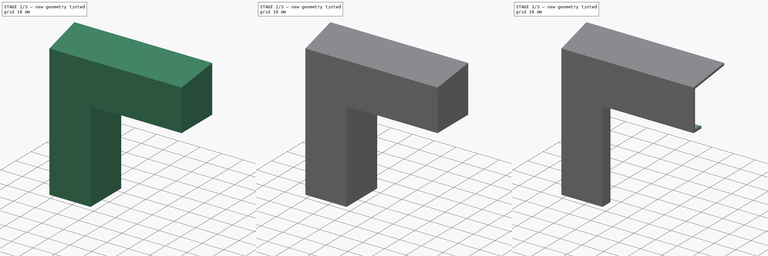
[diagram: build sequence overview — one tinted view per stage of 3, left to right]
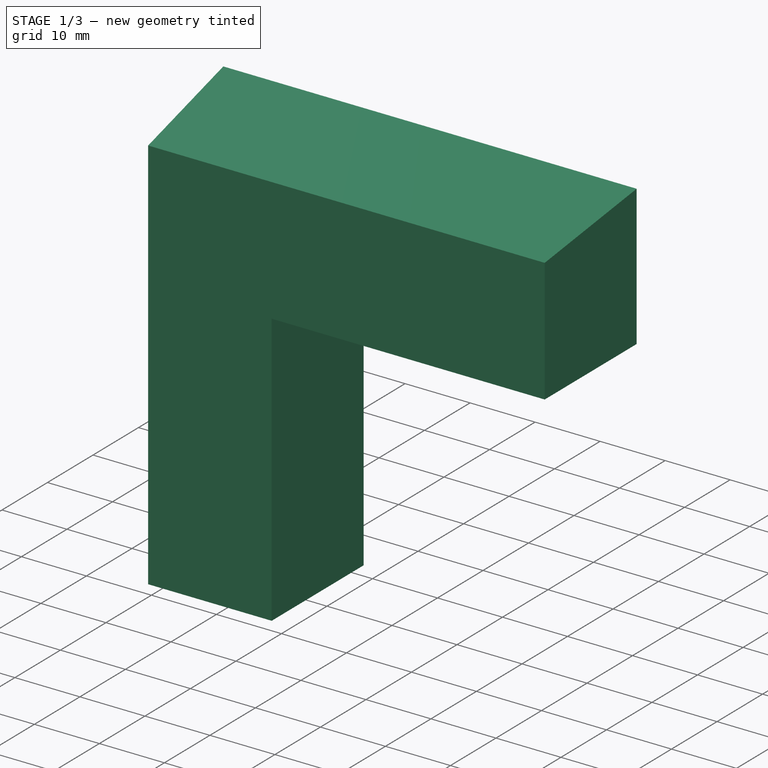
[diagram: stage 1 of 3 — iso view after this stage's code; geometry added in this stage tinted green]
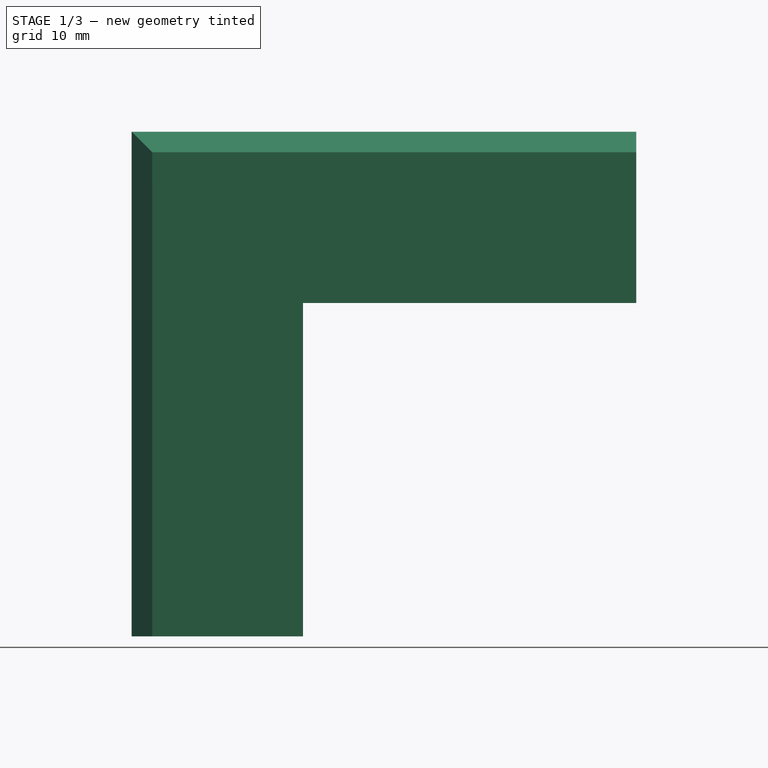
[diagram: stage 1 of 3 — front view after this stage's code; geometry added in this stage tinted green]
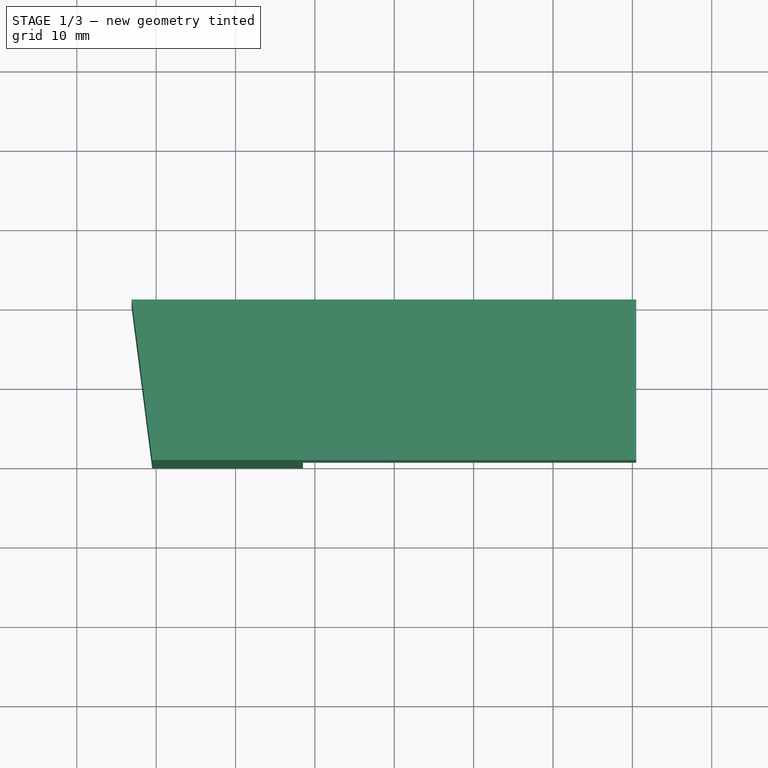
[diagram: stage 1 of 3 — top view after this stage's code; geometry added in this stage tinted green]
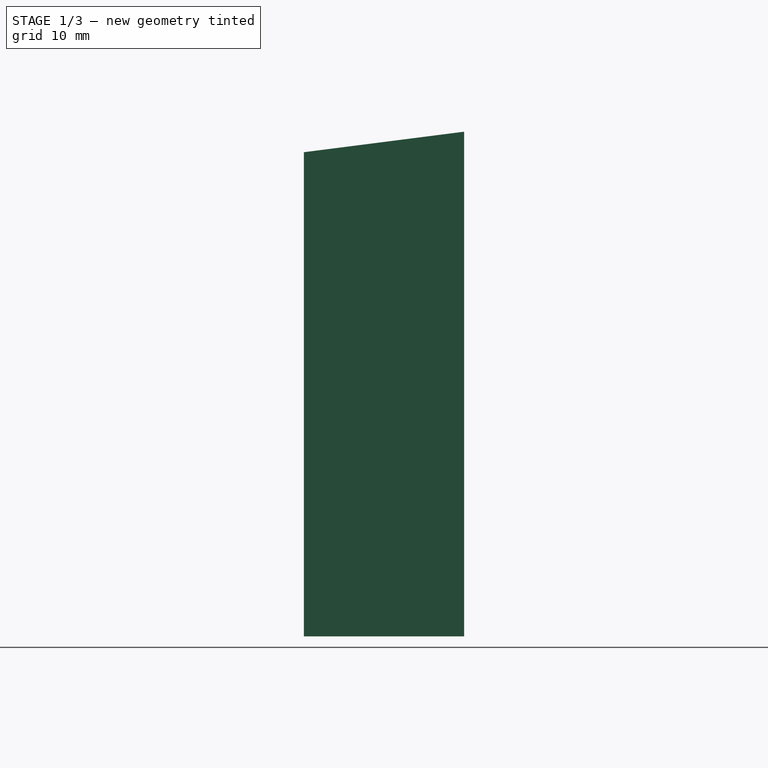
[diagram: stage 1 of 3 — right view after this stage's code; geometry added in this stage tinted green]
FCSTD DOCUMENT  (FreeCAD 0.20R29177 +426 (Git))
Label: monitor_cover_plates
License: All rights reserved
LicenseURL: http://en.wikipedia.org/wiki/All_rights_reserved
objects: Sketcher::SketchObject×4, PartDesign::Pocket×4, Spreadsheet::Sheet×1, PartDesign::Pad×1, PartDesign::Thickness×1, PartDesign::Body×1
note: 17 computed .brp shape members not serialized (recipe doc carries the construction recipe); baked Part::Feature solids carry a one-line shape summary decoded from their .brp

FEATURE [Spreadsheet::Sheet] Spreadsheet  label="$params"
  cells = A1=name; B1=value; A2=tol; B2(tol)=0.1; A3=thickness; B3(thickness)=1; A4=angle; B4(angle)=7.3; A5=width; B5(width)=60; A6=height; B6(height)=60; A7=screen_depth; B7(screen_depth)=19.2; A8=screen_lcd_offset; B8(screen_lcd_offset)=4.2; A9=screen_frame_thickness; B9(screen_frame_thickness)=17
FEATURE [Sketcher::SketchObject] Sketch  label="Corner Base Body Pad Sketch"
  FullyConstrained = true
  MapMode = 5
  Placement = pos=(0,0,0) rot=(1,0,0;1.5708rad)
  Support = -> [XZ_Plane]
  expr: Constraints[10] = <<$params>>.height + <<$params>>.thickness
  expr: Constraints[11] = <<$params>>.width + <<$params>>.thickness
  expr: Constraints[12] = Spreadsheet.screen_frame_thickness + <<$params>>.thickness * 2
  expr: Constraints[13] = Spreadsheet.screen_frame_thickness + <<$params>>.thickness * 2
  sketch-geometry (6):
    g0: LineSegment StartX=-30.5 StartY=-30.5 StartZ=0 EndX=-30.5 EndY=30.5 EndZ=0
    g1: LineSegment StartX=-30.5 StartY=30.5 StartZ=0 EndX=30.5 EndY=30.5 EndZ=0
    g2: LineSegment StartX=30.5 StartY=30.5 StartZ=0 EndX=30.5 EndY=11.5 EndZ=0
    g3: LineSegment StartX=30.5 StartY=11.5 StartZ=0 EndX=-11.5 EndY=11.5 EndZ=0
    g4: LineSegment StartX=-11.5 StartY=11.5 StartZ=0 EndX=-11.5 EndY=-30.5 EndZ=0
    g5: LineSegment StartX=-11.5 StartY=-30.5 StartZ=0 EndX=-30.5 EndY=-30.5 EndZ=0
  constraints (16):
    c: Coincident(g0,g1)
    c: Coincident(g1,g2)
    c: Vertical(g2)
    c: Coincident(g2,g3)
    c: Horizontal(g3)
    c: Coincident(g3,g4)
    c: Vertical(g4)
    c: Coincident(g4,g5)
    c: Coincident(g5,g0)
    c: Horizontal(g5)
    c: DistanceY(g0,g0) = 61
    c: DistanceX(g1,g1) = 61
    c: DistanceX(g5,g5) = 19
    c: DistanceY(g2,g2) = 19
    c: Symmetric(g0,g1,g-2)
    c: Symmetric(g0,g0,g-1)
FEATURE [PartDesign::Pad] Pad  label="Corner Base Body Pad"
  Direction = (0,-1,-2e-16)
  Length = 20.2
  Length2 = 10
  Placement = pos=(0,0,0) rot=(1,0,0;1.5708rad)
  Profile = -> Sketch
  ReferenceAxis = -> Sketch [N_Axis]
  Reversed = true
  TaperAngle = 7.3
  Type = 0
  expr: Length = <<$params>>.screen_depth + <<$params>>.thickness
  expr: TaperAngle = <<$params>>.angle
FEATURE [Sketcher::SketchObject] Sketch001  label="Corner Base Level Cut Sketch"
  ExternalGeometry = -> [Sketch]
  FullyConstrained = true
  MapMode = 5
  Placement = pos=(0,0,0) rot=(1,0,0;1.5708rad)
  Support = -> [Pad]
  sketch-geometry (10):
    g0: LineSegment StartX=-30.5 StartY=-30.5 StartZ=0 EndX=-11.5 EndY=-30.5 EndZ=0
    g1: LineSegment StartX=-11.5 StartY=-30.5 StartZ=0 EndX=-11.5 EndY=11.5 EndZ=0
    g2: LineSegment StartX=30.5 StartY=11.5 StartZ=0 EndX=-11.5 EndY=11.5 EndZ=0
    g3: LineSegment StartX=30.5 StartY=30.5 StartZ=0 EndX=30.5 EndY=11.5 EndZ=0
    g4: LineSegment StartX=-40.5 StartY=-40.5 StartZ=0 EndX=40.5 EndY=-40.5 EndZ=0
    g5: LineSegment StartX=40.5 StartY=40.5 StartZ=0 EndX=40.5 EndY=-40.5 EndZ=0
    g6: LineSegment StartX=-30.5 StartY=-30.5 StartZ=0 EndX=-40.5 EndY=-30.5 EndZ=0
    g7: LineSegment StartX=-40.5 StartY=-30.5 StartZ=0 EndX=-40.5 EndY=-40.5 EndZ=0
    g8: LineSegment StartX=30.5 StartY=30.5 StartZ=0 EndX=30.5 EndY=40.5 EndZ=0
    g9: LineSegment StartX=30.5 StartY=40.5 StartZ=0 EndX=40.5 EndY=40.5 EndZ=0
  constraints (25):
    c: Coincident(g0,g-3)
    c: Coincident(g0,g-4)
    c: Coincident(g1,g0)
    c: Coincident(g1,g-5)
    c: Coincident(g2,g-6)
    c: Coincident(g2,g1)
    c: Coincident(g3,g-6)
    c: Coincident(g3,g2)
    c: Horizontal(g4)
    c: Coincident(g5,g4)
    c: Vertical(g5)
    c: Coincident(g6,g0)
    c: Horizontal(g6)
    c: Coincident(g7,g6)
    c: Coincident(g7,g4)
    c: Vertical(g7)
    c: Coincident(g8,g3)
    c: Vertical(g8)
    c: Coincident(g9,g8)
    c: Coincident(g9,g5)
    c: Horizontal(g9)
    c: Equal(g9,g8)
    c: Equal(g8,g6)
    c: Equal(g6,g7)
    c: DistanceY(g7,g7) = 10
FEATURE [PartDesign::Pocket] Pocket  label="Corner Base Level Cut"
  BaseFeature = -> Pad
  Direction = (0,1,2e-16)
  Length = 20.2
  Length2 = 5
  Offset = 19.2
  Placement = pos=(0,0,0) rot=(1,0,0;1.5708rad)
  Profile = -> Sketch001
  ReferenceAxis = -> Sketch001 [N_Axis]
  Refine = true
  Type = 0
  expr: Length = <<$params>>.screen_depth + <<$params>>.thickness
  expr: Offset = <<$params>>.screen_depth
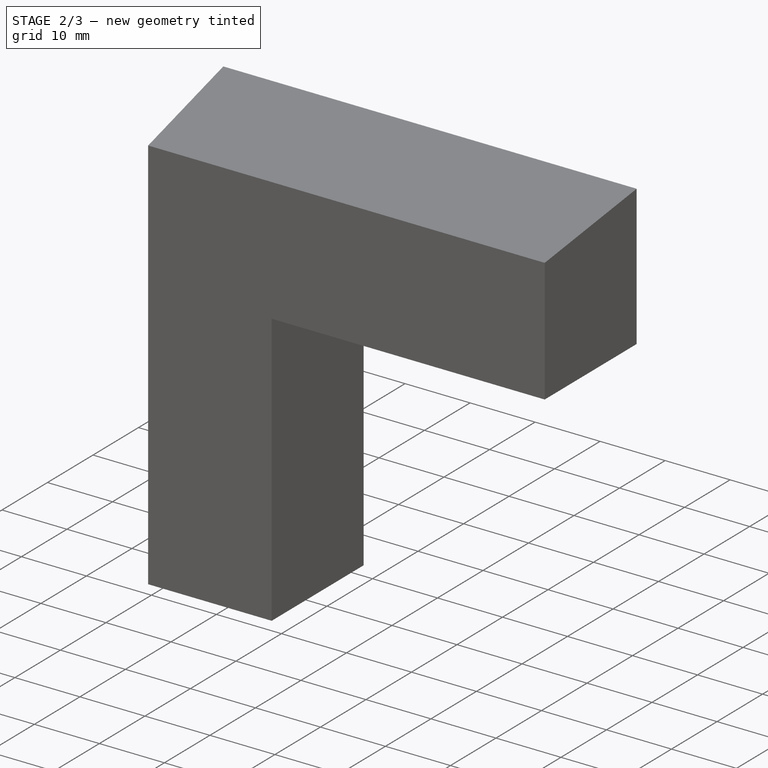
[diagram: stage 2 of 3 — iso view after this stage's code; geometry added in this stage tinted green]
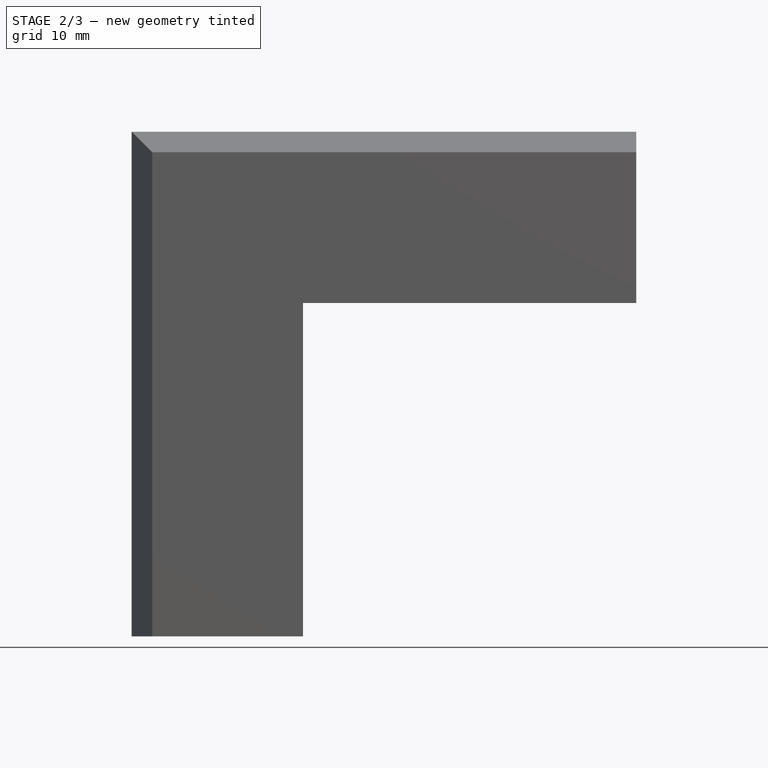
[diagram: stage 2 of 3 — front view after this stage's code; geometry added in this stage tinted green]
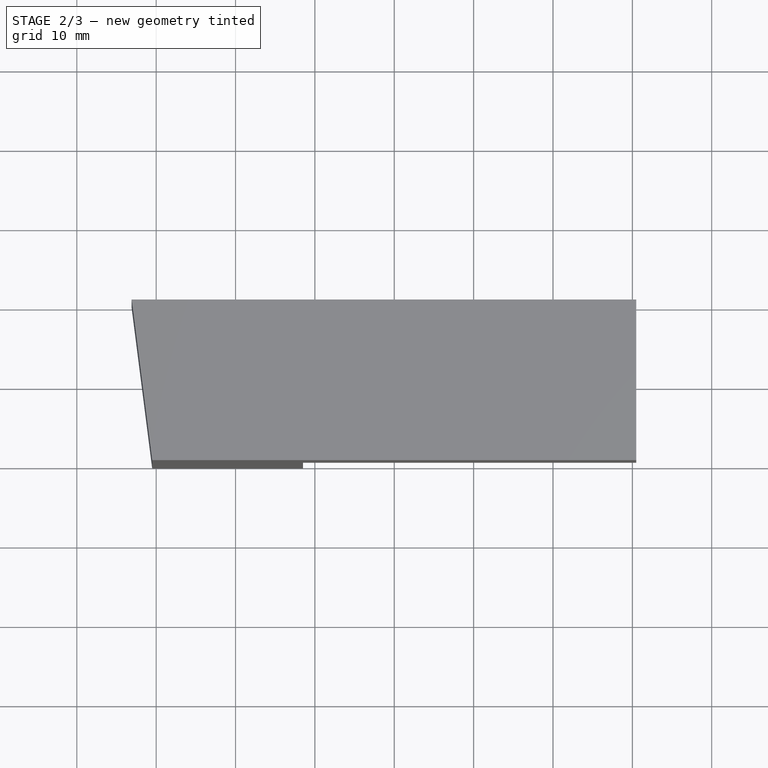
[diagram: stage 2 of 3 — top view after this stage's code; geometry added in this stage tinted green]
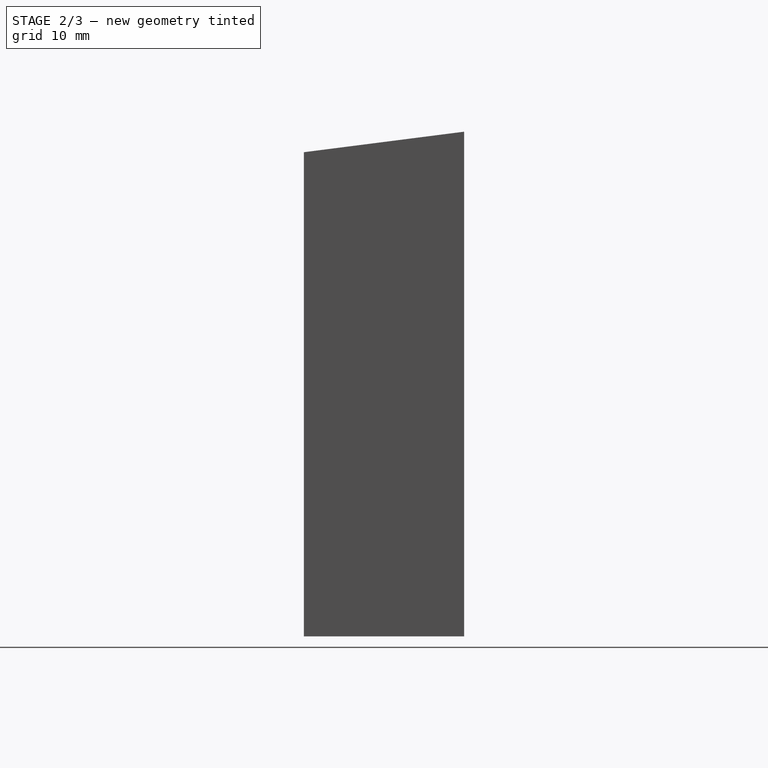
[diagram: stage 2 of 3 — right view after this stage's code; geometry added in this stage tinted green]
FEATURE [PartDesign::Thickness] Thickness  label="Corner Base Hollow"
  Base = -> Pocket [Face3]
  BaseFeature = -> Pocket
  Intersection = false
  Join = 1
  Mode = 0
  Reversed = true
  SupportTransform = false
  Value = 1
  expr: Value = <<$params>>.thickness
FEATURE [Sketcher::SketchObject] Sketch002  label="Corner Side Cut 1 Sketch"
  ExternalGeometry = -> [Thickness]
  FullyConstrained = true
  MapMode = 5
  Placement = pos=(0,6.8e-15,-30.5) rot=(1,0,0;3.14159rad)
  Support = -> [Thickness]
  expr: Constraints[14] = <<$params>>.thickness
  expr: Constraints[15] = <<$params>>.thickness
  expr: Constraints[8] = <<$params>>.thickness
  sketch-geometry (6):
    g0: LineSegment StartX=-32.0877 StartY=-20.2 StartZ=0 EndX=-29.6281 EndY=-1 EndZ=0
    g1: LineSegment StartX=-29.6281 StartY=-1 StartZ=0 EndX=-12.5 EndY=-1 EndZ=0
    g2: LineSegment StartX=-12.5 StartY=-1 StartZ=0 EndX=-12.5 EndY=-20.2 EndZ=0
    g3: LineSegment StartX=-12.5 StartY=-20.2 StartZ=0 EndX=-32.0877 EndY=-20.2 EndZ=0
    g4: LineSegment StartX=-30.5 StartY=1.4e-15 StartZ=0 EndX=-33.0877 EndY=-20.2 EndZ=0
    g5: LineSegment StartX=-11.5 StartY=0 StartZ=0 EndX=-11.5 EndY=-20.2 EndZ=0
  constraints (16):
    c: PointOnObject(g0,g-3)
    c: Coincident(g1,g0)
    c: Horizontal(g1)
    c: Coincident(g2,g1)
    c: PointOnObject(g2,g-3)
    c: Vertical(g2)
    c: Coincident(g3,g2)
    c: Coincident(g3,g0)
    c: DistanceX(g-3,g0) = 1
    c: Coincident(g4,g-5)
    c: Coincident(g4,g-5)
    c: Coincident(g5,g-6)
    c: Coincident(g5,g-6)
    c: Parallel(g0,g4)
    c: DistanceX(g2,g5) = 1
    c: DistanceY(g1,g5) = 1
FEATURE [PartDesign::Pocket] Pocket001  label="Corner Side Cut 1"
  BaseFeature = -> Thickness
  Direction = (0,-2e-16,1)
  Length = 5
  Length2 = 5
  Profile = -> Sketch002
  ReferenceAxis = -> Sketch002 [N_Axis]
  Type = 2
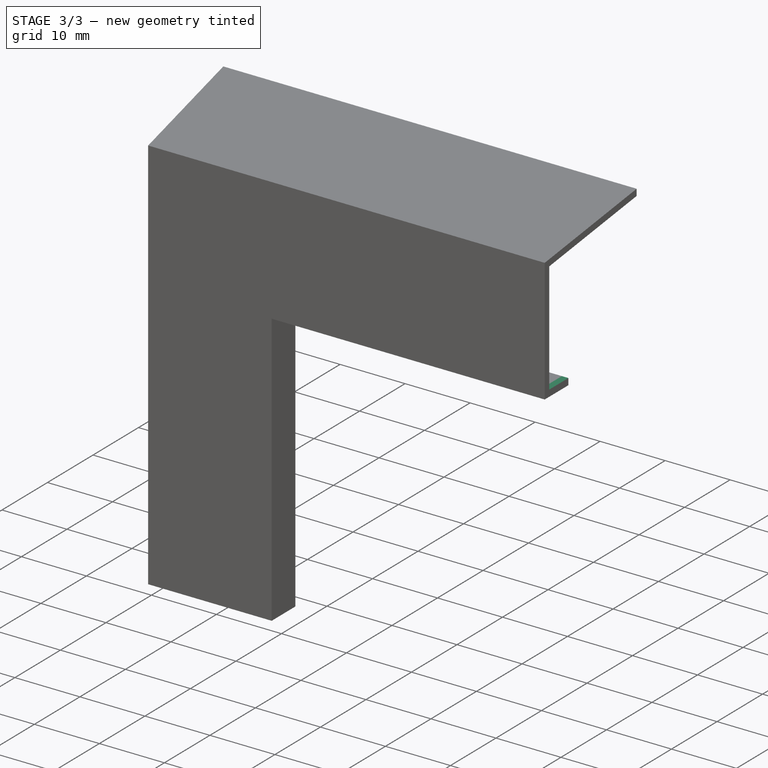
[diagram: stage 3 of 3 — iso view after this stage's code; geometry added in this stage tinted green]
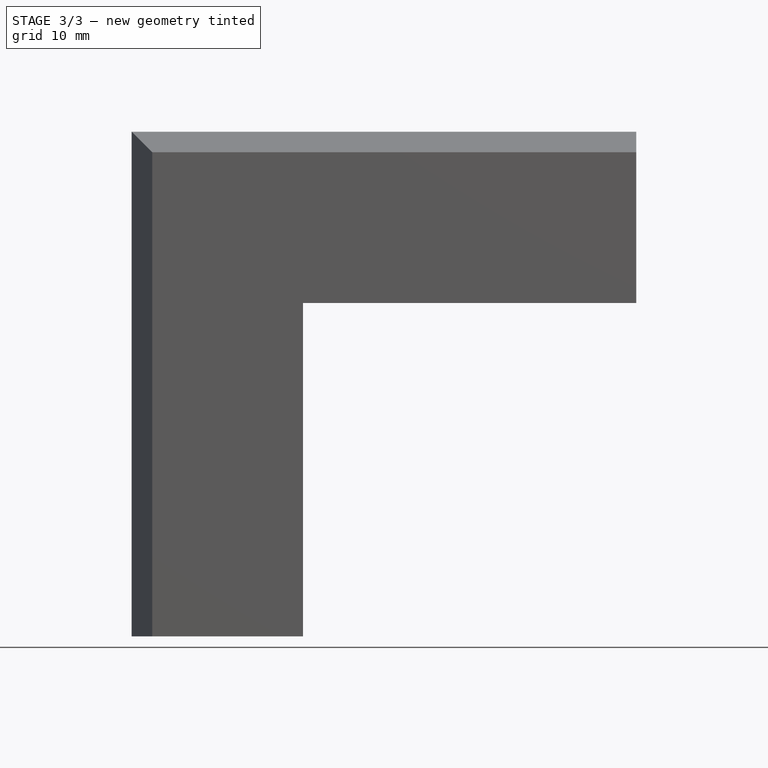
[diagram: stage 3 of 3 — front view after this stage's code; geometry added in this stage tinted green]
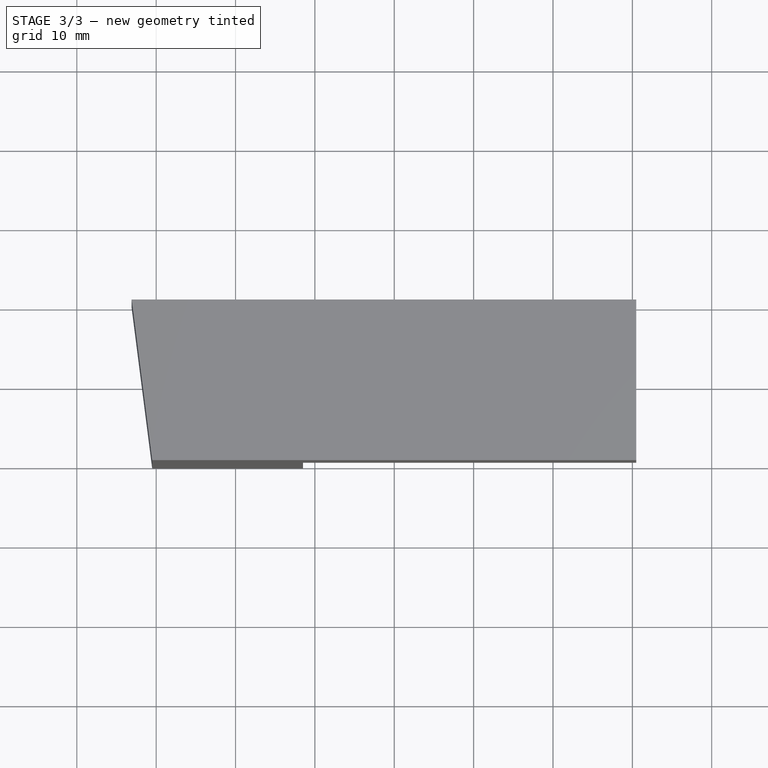
[diagram: stage 3 of 3 — top view after this stage's code; geometry added in this stage tinted green]
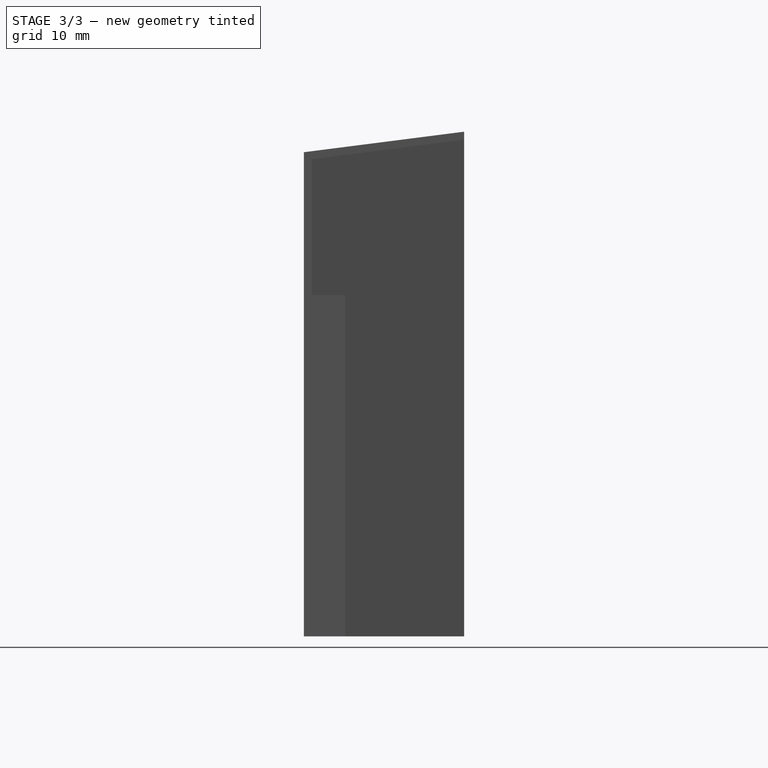
[diagram: stage 3 of 3 — right view after this stage's code; geometry added in this stage tinted green]
FEATURE [Sketcher::SketchObject] Sketch003  label="Corner Side Cut 2 Sketch"
  ExternalGeometry = -> [Thickness]
  FullyConstrained = true
  MapMode = 5
  Placement = pos=(30.5,0,0) rot=(0.57735,0.57735,0.57735;2.0944rad)
  Support = -> [Thickness]
  expr: Constraints[12] = <<$params>>.thickness
  expr: Constraints[13] = <<$params>>.thickness
  expr: Constraints[14] = <<$params>>.thickness
  sketch-geometry (6):
    g0: LineSegment StartX=20.2 StartY=33.0877 StartZ=0 EndX=-7.1e-15 EndY=30.5 EndZ=0
    g1: LineSegment StartX=20.2 StartY=11.5 StartZ=0 EndX=0 EndY=11.5 EndZ=0
    g2: LineSegment StartX=20.2 StartY=32.0877 StartZ=0 EndX=1 EndY=29.6281 EndZ=0
    g3: LineSegment StartX=1 StartY=29.6281 StartZ=0 EndX=1 EndY=12.5 EndZ=0
    g4: LineSegment StartX=1 StartY=12.5 StartZ=0 EndX=20.2 EndY=12.5 EndZ=0
    g5: LineSegment StartX=20.2 StartY=12.5 StartZ=0 EndX=20.2 EndY=32.0877 EndZ=0
  constraints (16):
    c: Coincident(g0,g-5)
    c: Coincident(g0,g-6)
    c: Coincident(g1,g-5)
    c: Coincident(g1,g-6)
    c: PointOnObject(g2,g-5)
    c: Coincident(g3,g2)
    c: Vertical(g3)
    c: Coincident(g4,g3)
    c: PointOnObject(g4,g-5)
    c: Horizontal(g4)
    c: Coincident(g5,g4)
    c: Coincident(g5,g2)
    c: DistanceY(g1,g4) = 1
    c: DistanceY(g2,g0) = 1
    c: DistanceX(g0,g2) = 1
    c: Parallel(g2,g0)
FEATURE [PartDesign::Pocket] Pocket002  label="Corner Side Cut 2"
  BaseFeature = -> Pocket001
  Direction = (-1,0,0)
  Length = 5
  Length2 = 5
  Profile = -> Sketch003
  ReferenceAxis = -> Sketch003 [N_Axis]
  Type = 2
FEATURE [PartDesign::Pocket] Pocket003  label="Corner LCD Offset Cut"
  BaseFeature = -> Pocket002
  Direction = (0,-1,-2e-16)
  Length = 15
  Length2 = 5
  Profile = -> Pocket002 [Face9]
  Type = 0
  expr: Length = <<$params>>.screen_depth - <<$params>>.screen_lcd_offset
FEATURE [PartDesign::Body] Body  label="Corner"
  Group = -> [Sketch,Pad,Sketch001,Pocket,Thickness,Sketch002,Pocket001,Sketch003,Pocket002,Pocket003]
  Origin = -> Origin
  Tip = -> Pocket003
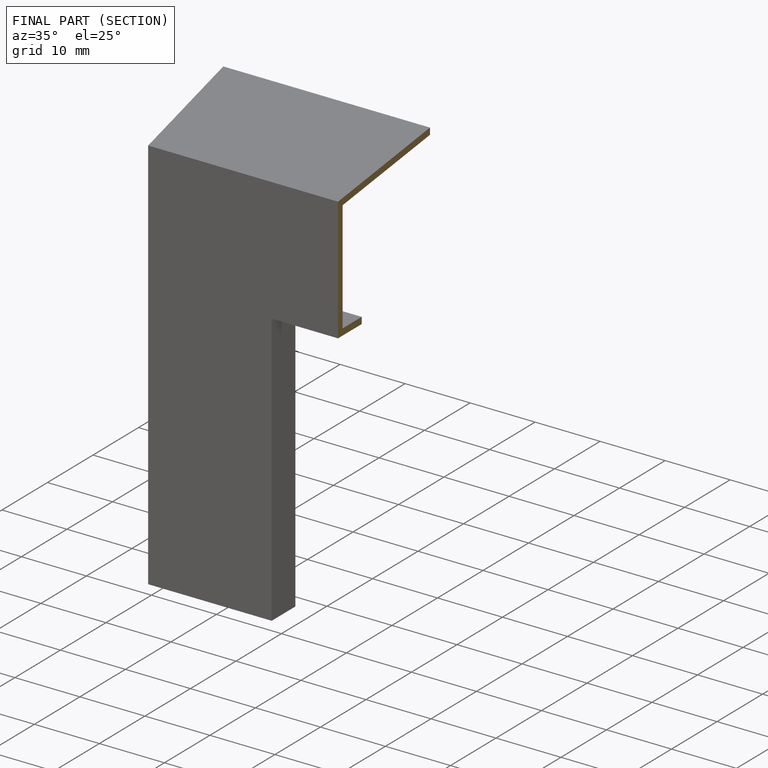
[diagram: finished part — half-section view (interior)]
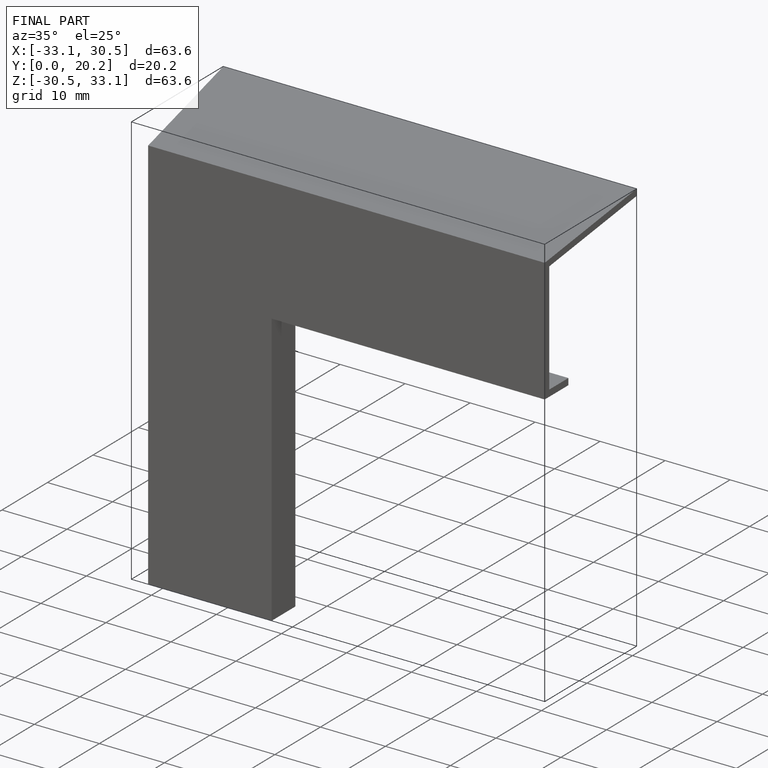
[diagram: finished part — iso view with bounding-box wireframe]
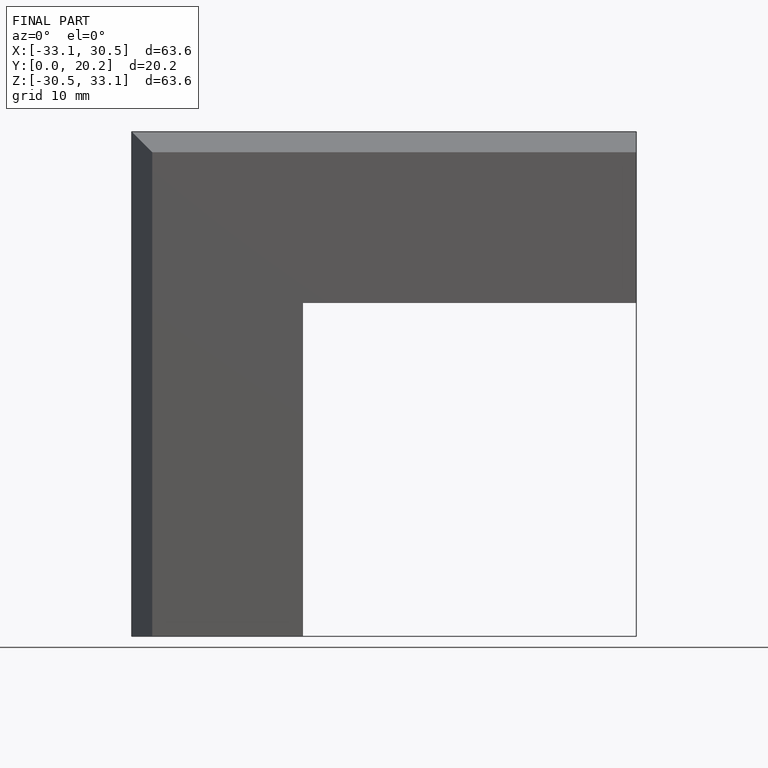
[diagram: finished part — front view with bounding-box wireframe]
